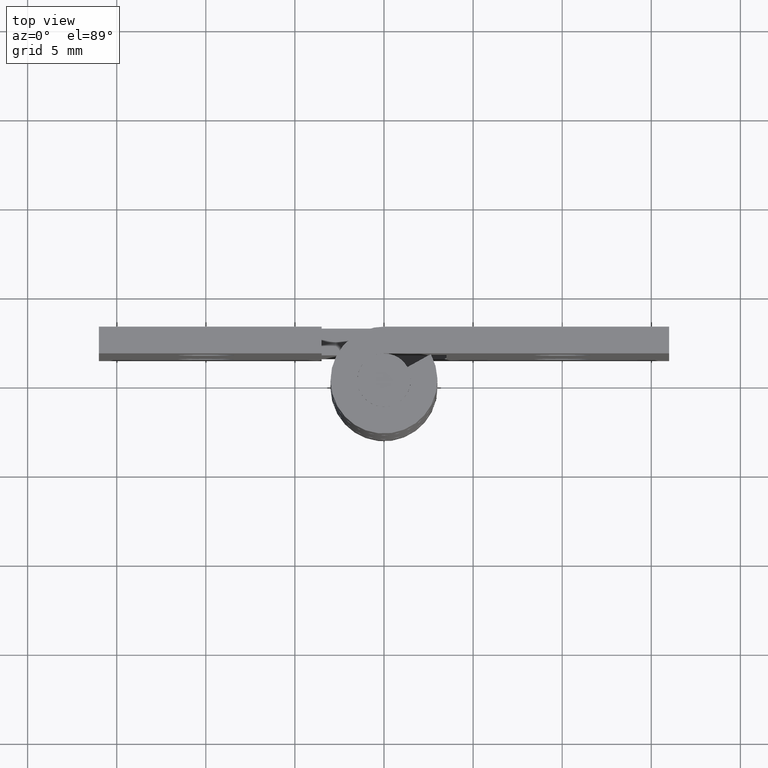
[diagram: clean part render]
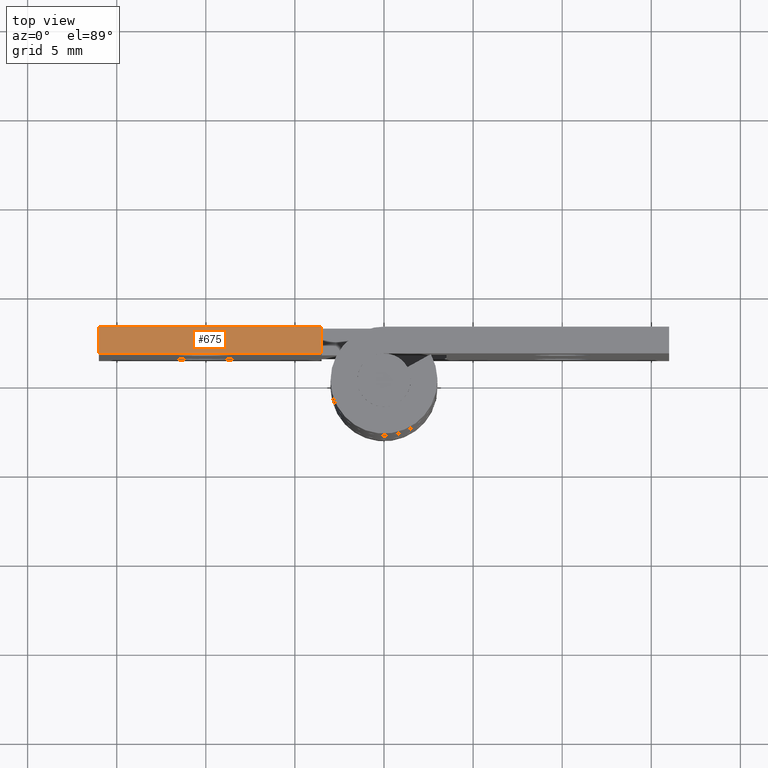
[diagram: same view with one face highlighted and labeled with its STEP entity id]
A machine part, top view. The second image highlights one B-rep face of the part: STEP entity #675.
In plain terms, the highlighted face is a freeform B-spline surface patch.
Its self-contained STEP definition (entity closure, byte-faithful):
#519=CARTESIAN_POINT('',(-3.500000000000000,1.499999999999946,25.0));
#520=VERTEX_POINT('',#519);
#535=CARTESIAN_POINT('',(-3.500000000000000,3.0,25.0));
#536=VERTEX_POINT('',#535);
#542=CARTESIAN_POINT('',(-3.500000000000000,1.499999999999946,25.0));
#543=CARTESIAN_POINT('',(-3.500000000000000,3.0,25.0));
#544=QUASI_UNIFORM_CURVE('',1,(#542,#543),.UNSPECIFIED.,.F.,.U.);
#545=EDGE_CURVE('',#520,#536,#544,.T.);
#634=CARTESIAN_POINT('',(-16.0,1.500000000000000,25.0));
#635=VERTEX_POINT('',#634);
#641=CARTESIAN_POINT('',(-16.0,3.0,25.0));
#642=VERTEX_POINT('',#641);
#643=CARTESIAN_POINT('',(-16.0,3.0,25.0));
#644=CARTESIAN_POINT('',(-16.0,1.500000000000000,25.0));
#645=QUASI_UNIFORM_CURVE('',1,(#643,#644),.UNSPECIFIED.,.F.,.U.);
#646=EDGE_CURVE('',#642,#635,#645,.T.);
#656=CARTESIAN_POINT('',(-16.624374975772579,1.425075002907234,25.0));
#657=CARTESIAN_POINT('',(-2.875624688951299,1.425075002907234,25.0));
#658=CARTESIAN_POINT('',(-16.624374975772579,3.074925037325847,25.0));
#659=CARTESIAN_POINT('',(-2.875624688951299,3.074925037325847,25.0));
#660=B_SPLINE_SURFACE_WITH_KNOTS('',1,1,((#656,#658),(#657,#659)),.UNSPECIFIED.,.F.,.F.,.U.,(2,2),(2,2),(0.0,13.748750286821281),(0.041708334948495,0.958291687403247),.UNSPECIFIED.);
#661=ORIENTED_EDGE('',*,*,#545,.T.);
#662=CARTESIAN_POINT('',(-3.500000000000000,3.0,25.0));
#663=CARTESIAN_POINT('',(-16.0,3.0,25.0));
#664=QUASI_UNIFORM_CURVE('',1,(#662,#663),.UNSPECIFIED.,.F.,.U.);
#665=EDGE_CURVE('',#536,#642,#664,.T.);
#666=ORIENTED_EDGE('',*,*,#665,.T.);
#667=ORIENTED_EDGE('',*,*,#646,.T.);
#668=CARTESIAN_POINT('',(-16.0,1.500000000000000,25.0));
#669=CARTESIAN_POINT('',(-3.500000000000000,1.499999999999946,25.0));
#670=QUASI_UNIFORM_CURVE('',1,(#668,#669),.UNSPECIFIED.,.F.,.U.);
#671=EDGE_CURVE('',#635,#520,#670,.T.);
#672=ORIENTED_EDGE('',*,*,#671,.T.);
#673=EDGE_LOOP('',(#661,#666,#667,#672));
#674=FACE_OUTER_BOUND('',#673,.T.);
#675=ADVANCED_FACE('',(#674),#660,.T.);